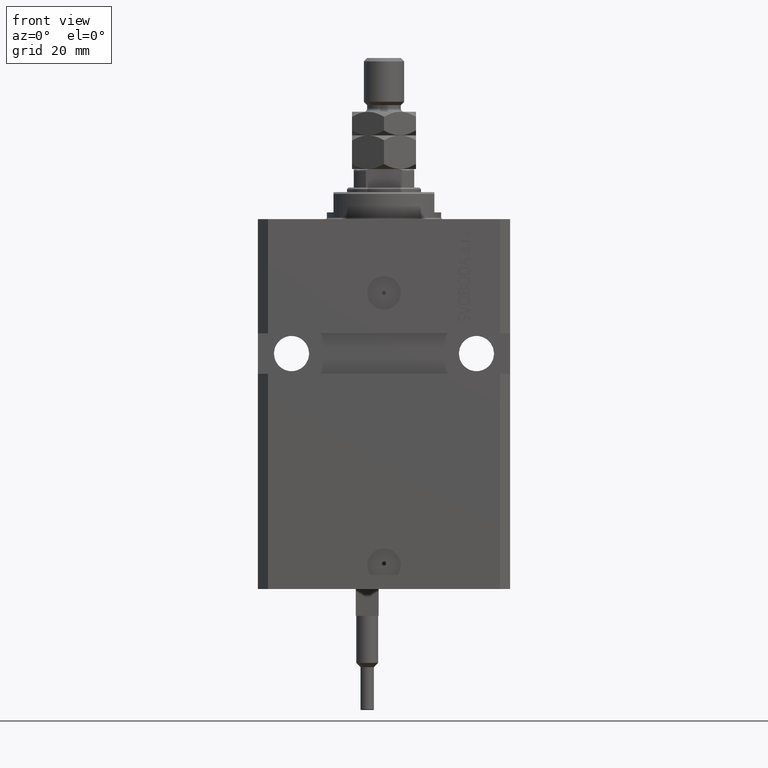
[diagram: clean part render]
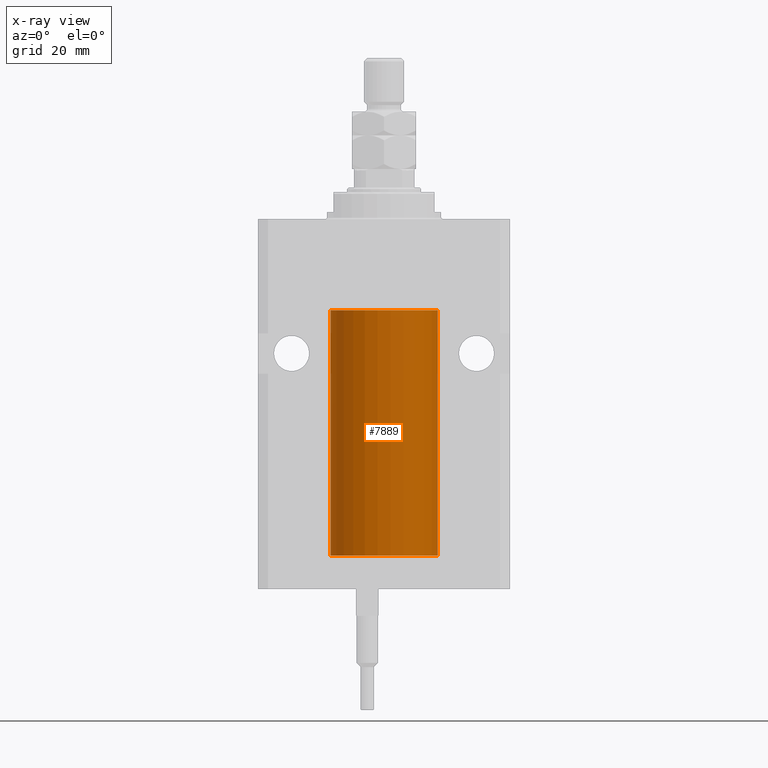
[diagram: x-ray — body ghosted, one internal face saturated and labeled with its STEP entity id]
A machine part, front view, then the same camera in x-ray: the body is ghosted and one INTERNAL B-rep face — a face not visible from any outside direction — is saturated and labeled: STEP entity #7889.
In plain terms, the highlighted cylindrical surface (partial cylindrical patch) has radius 16 mm, axis along (0, 0, 1).
Its self-contained STEP definition (entity closure, byte-faithful):
#826 = ORIENTED_EDGE ( 'NONE', *, *, #25015, .T. ) ;
#3041 = DIRECTION ( 'NONE',  ( -0.000000000000000000, -0.000000000000000000, 1.000000000000000000 ) ) ;
#3443 = CARTESIAN_POINT ( 'NONE',  ( -15.99071965633095793, -0.5569502390237154321, -98.32709508218682970 ) ) ;
#3796 = CARTESIAN_POINT ( 'NONE',  ( 0.000000000000000000, 0.000000000000000000, -100.0999999999999943 ) ) ;
#4035 = FACE_OUTER_BOUND ( 'NONE', #47032, .T. ) ;
#4605 = DIRECTION ( 'NONE',  ( 0.000000000000000000, 0.000000000000000000, 1.000000000000000000 ) ) ;
#5601 = LINE ( 'NONE', #27245, #42842 ) ;
#6129 = CARTESIAN_POINT ( 'NONE',  ( 16.00000000000000000, 0.000000000000000000, -100.0999999999999943 ) ) ;
#6920 = EDGE_CURVE ( 'NONE', #8987, #41741, #5601, .T. ) ;
#7889 = ADVANCED_FACE ( 'NONE', ( #4035 ), #25964, .F. ) ;
#8175 = VECTOR ( 'NONE', #3041, 1000.000000000000000 ) ;
#8987 = VERTEX_POINT ( 'NONE', #28729 ) ;
#11111 = AXIS2_PLACEMENT_3D ( 'NONE', #15568, #4605, #18835 ) ;
#14638 = CARTESIAN_POINT ( 'NONE',  ( -16.00000000000000000, -1.303459030566954747E-14, -97.37500000000000000 ) ) ;
#15243 = CARTESIAN_POINT ( 'NONE',  ( -16.00000000000013145, 3.685127046438747128E-13, -98.62500000000343903 ) ) ;
#15568 = CARTESIAN_POINT ( 'NONE',  ( 0.000000000000000000, 0.000000000000000000, -27.10000000000000142 ) ) ;
#15671 = CIRCLE ( 'NONE', #27607, 16.00000000000000000 ) ;
#16518 = EDGE_CURVE ( 'NONE', #41741, #23988, #33372, .T. ) ;
#18835 = DIRECTION ( 'NONE',  ( 1.000000000000000000, 0.000000000000000000, 0.000000000000000000 ) ) ;
#19231 = DIRECTION ( 'NONE',  ( 1.000000000000000000, 0.000000000000000000, 0.000000000000000000 ) ) ;
#19523 = ORIENTED_EDGE ( 'NONE', *, *, #34116, .T. ) ;
#20544 = DIRECTION ( 'NONE',  ( -0.000000000000000000, -0.000000000000000000, 1.000000000000000000 ) ) ;
#21071 = LINE ( 'NONE', #39929, #32164 ) ;
#21879 = CARTESIAN_POINT ( 'NONE',  ( -15.99707459521409625, -0.3269651631532106140, -97.44291848928558863 ) ) ;
#21947 = CARTESIAN_POINT ( 'NONE',  ( 16.00000000000000000, 0.000000000000000000, -100.0999999999999943 ) ) ;
#22118 = CARTESIAN_POINT ( 'NONE',  ( -16.00000000000000711, -0.1631344205875864539, -98.62500000000012790 ) ) ;
#23988 = VERTEX_POINT ( 'NONE', #31008 ) ;
#25015 = EDGE_CURVE ( 'NONE', #47895, #8987, #42342, .T. ) ;
#25854 = CARTESIAN_POINT ( 'NONE',  ( -16.00000000000000000, -0.1651602165840288794, -97.37500000000001421 ) ) ;
#25964 = CYLINDRICAL_SURFACE ( 'NONE', #39739, 16.00000000000000000 ) ;
#26605 = ORIENTED_EDGE ( 'NONE', *, *, #6920, .T. ) ;
#26988 = EDGE_CURVE ( 'NONE', #43135, #23988, #32387, .T. ) ;
#27245 = CARTESIAN_POINT ( 'NONE',  ( -16.00000000000000000, 1.959434878635765131E-15, -100.0999999999999943 ) ) ;
#27607 = AXIS2_PLACEMENT_3D ( 'NONE', #29815, #44966, #37982 ) ;
#28729 = CARTESIAN_POINT ( 'NONE',  ( -16.00000000000000000, -1.303459030566954747E-14, -97.37500000000000000 ) ) ;
#29334 = CARTESIAN_POINT ( 'NONE',  ( -15.98779367741636648, -0.6248626626677354912, -98.16539631985041581 ) ) ;
#29663 = ORIENTED_EDGE ( 'NONE', *, *, #16518, .T. ) ;
#29815 = CARTESIAN_POINT ( 'NONE',  ( 0.000000000000000000, 0.000000000000000000, -100.0999999999999943 ) ) ;
#31008 = CARTESIAN_POINT ( 'NONE',  ( 16.00000000000000000, 0.000000000000000000, -27.10000000000000142 ) ) ;
#32164 = VECTOR ( 'NONE', #32485, 1000.000000000000000 ) ;
#32387 = LINE ( 'NONE', #21947, #8175 ) ;
#32485 = DIRECTION ( 'NONE',  ( -0.000000000000000000, -0.000000000000000000, 1.000000000000000000 ) ) ;
#32812 = CARTESIAN_POINT ( 'NONE',  ( -16.00000000000013145, 3.685127046438747128E-13, -98.62500000000343903 ) ) ;
#33372 = CIRCLE ( 'NONE', #11111, 16.00000000000000000 ) ;
#34116 = EDGE_CURVE ( 'NONE', #42054, #47895, #21071, .T. ) ;
#36695 = CARTESIAN_POINT ( 'NONE',  ( -16.00000000000000000, 1.959434878635765131E-15, -100.0999999999999943 ) ) ;
#36785 = CARTESIAN_POINT ( 'NONE',  ( -15.99708815688950381, -0.3263115027449080552, -98.55740969198227219 ) ) ;
#37028 = CARTESIAN_POINT ( 'NONE',  ( -15.99069874693027948, -0.5575440858643423425, -97.67382425011452085 ) ) ;
#37982 = DIRECTION ( 'NONE',  ( 1.000000000000000000, 0.000000000000000000, 0.000000000000000000 ) ) ;
#38966 = CARTESIAN_POINT ( 'NONE',  ( -16.00000000000000000, 1.959434878635765131E-15, -27.10000000000000142 ) ) ;
#39739 = AXIS2_PLACEMENT_3D ( 'NONE', #3796, #42056, #19231 ) ;
#39929 = CARTESIAN_POINT ( 'NONE',  ( -16.00000000000000000, 1.959434878635765131E-15, -100.0999999999999943 ) ) ;
#40748 = EDGE_CURVE ( 'NONE', #42054, #43135, #15671, .T. ) ;
#41741 = VERTEX_POINT ( 'NONE', #38966 ) ;
#42054 = VERTEX_POINT ( 'NONE', #36695 ) ;
#42056 = DIRECTION ( 'NONE',  ( -0.000000000000000000, -0.000000000000000000, 1.000000000000000000 ) ) ;
#42342 = B_SPLINE_CURVE_WITH_KNOTS ( 'NONE', 3,
 ( #32812, #22118, #36785, #3443, #29334, #44721, #37028, #21879, #25854, #14638 ),
 .UNSPECIFIED., .F., .F.,
 ( 4, 2, 2, 2, 4 ),
 ( 0.001954221322144760863, 0.002442665739568255709, 0.002931110156991750121, 0.003419554574415244966, 0.003907998991838739812 ),
 .UNSPECIFIED. ) ;
#42842 = VECTOR ( 'NONE', #20544, 1000.000000000000000 ) ;
#43098 = ORIENTED_EDGE ( 'NONE', *, *, #40748, .F. ) ;
#43135 = VERTEX_POINT ( 'NONE', #6129 ) ;
#44721 = CARTESIAN_POINT ( 'NONE',  ( -15.98778295664474491, -0.6251369050462269872, -97.83564325457868449 ) ) ;
#44966 = DIRECTION ( 'NONE',  ( 0.000000000000000000, 0.000000000000000000, 1.000000000000000000 ) ) ;
#47032 = EDGE_LOOP ( 'NONE', ( #43098, #19523, #826, #26605, #29663, #47096 ) ) ;
#47096 = ORIENTED_EDGE ( 'NONE', *, *, #26988, .F. ) ;
#47895 = VERTEX_POINT ( 'NONE', #15243 ) ;